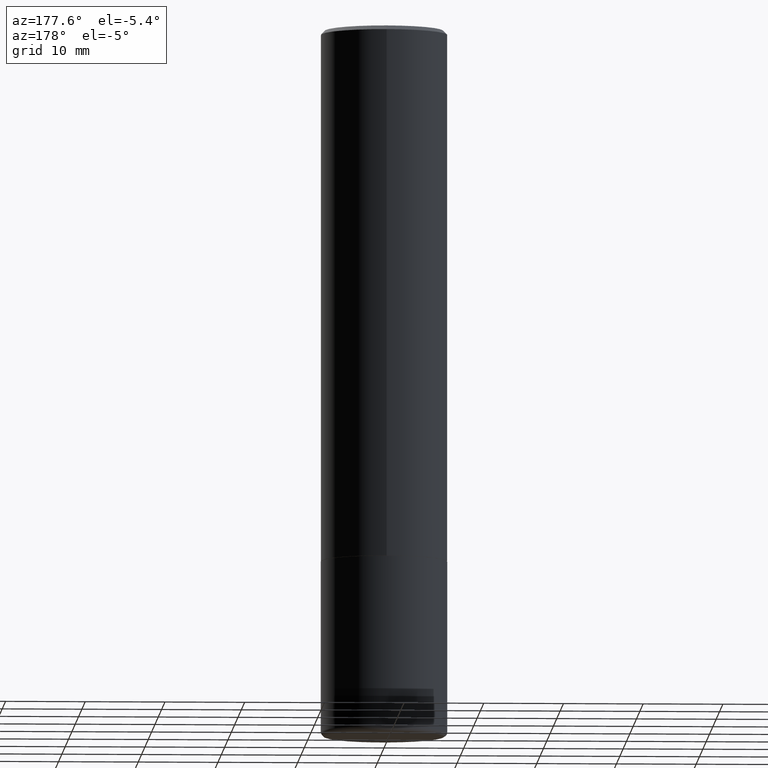
[diagram: clean part render]
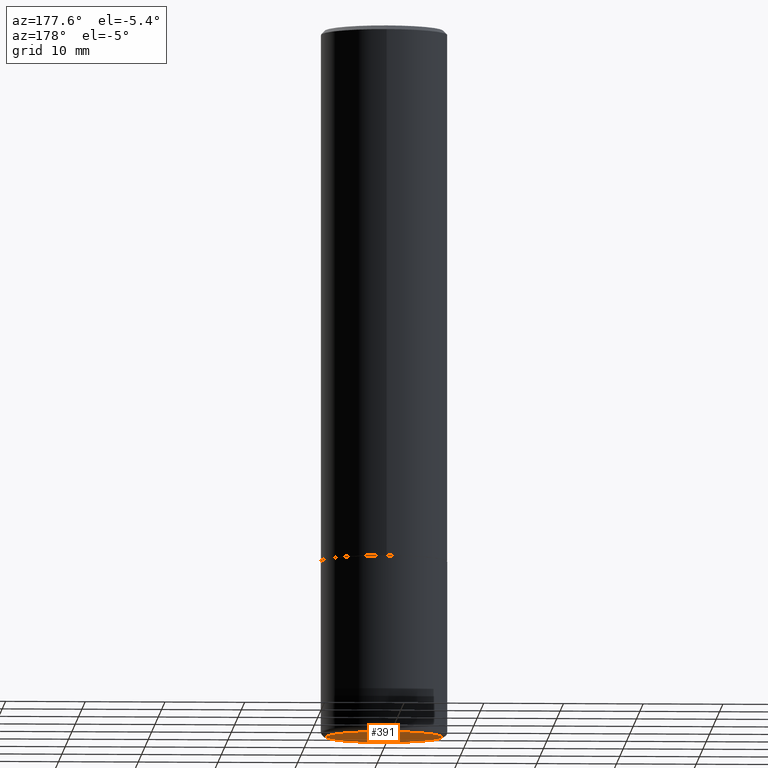
[diagram: same view with one face highlighted and labeled with its STEP entity id]
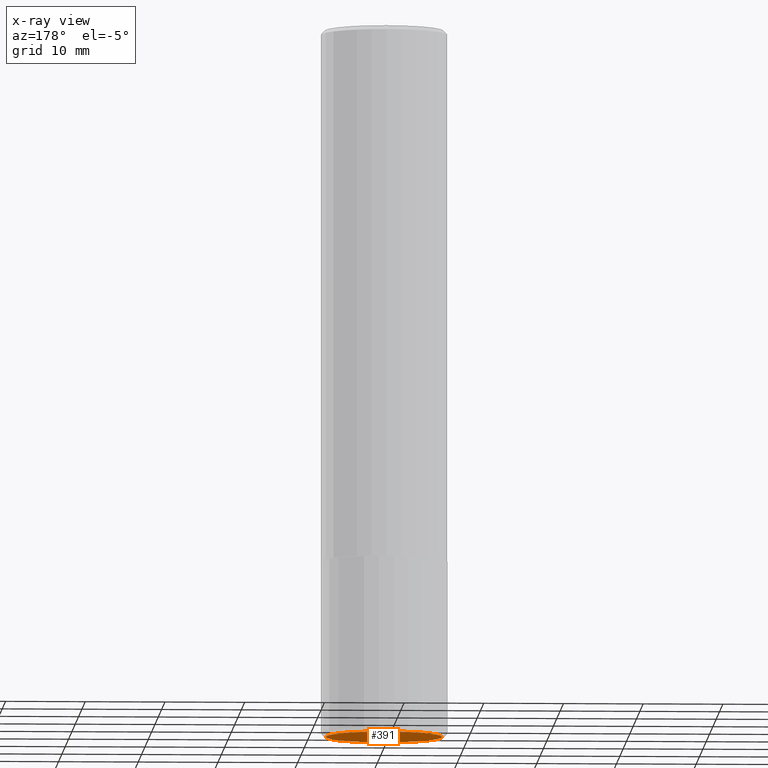
[diagram: x-ray of the same camera — body ghosted, the highlighted face saturated]
A machine part, auxiliary view. The second image highlights one B-rep face of the part: STEP entity #391.
The next image is the same camera in x-ray: the body ghosted, the highlighted face saturated — about 0% of this face is hidden behind the body in this view.
In plain terms, the highlighted planar face has unit normal (0, -0, -1).
Its self-contained STEP definition (entity closure, byte-faithful):
#8 = DIRECTION ( 'NONE',  ( -2.445468806185136597E-29, 3.491481338843145583E-15, 1.000000000000000000 ) ) ;
#12 = EDGE_LOOP ( 'NONE', ( #324, #301 ) ) ;
#34 = DIRECTION ( 'NONE',  ( -1.000000000000000000, 6.982962677686265922E-15, -4.876176775795935793E-29 ) ) ;
#71 = CARTESIAN_POINT ( 'NONE',  ( 8.559140821647976968E-29, -1.222018468595100619E-14, -3.499999999999999112 ) ) ;
#103 = VERTEX_POINT ( 'NONE', #218 ) ;
#105 = CARTESIAN_POINT ( 'NONE',  ( 8.559140821647976968E-29, -1.222018468595100619E-14, -3.499999999999999112 ) ) ;
#127 = PLANE ( 'NONE',  #148 ) ;
#148 = AXIS2_PLACEMENT_3D ( 'NONE', #259, #189, #34 ) ;
#180 = AXIS2_PLACEMENT_3D ( 'NONE', #105, #365, #362 ) ;
#189 = DIRECTION ( 'NONE',  ( 2.438088387897960049E-29, -3.491481338843145188E-15, -1.000000000000000000 ) ) ;
#191 = AXIS2_PLACEMENT_3D ( 'NONE', #71, #8, #334 ) ;
#218 = CARTESIAN_POINT ( 'NONE',  ( -0.2875000000000000333, -1.004491296193516694E-14, -3.499999999999999112 ) ) ;
#226 = EDGE_CURVE ( 'NONE', #103, #345, #262, .T. ) ;
#257 = EDGE_CURVE ( 'NONE', #345, #103, #379, .T. ) ;
#259 = CARTESIAN_POINT ( 'NONE',  ( 1.320382771090319883E-28, -5.568728701377147127E-15, -3.499999999999999112 ) ) ;
#262 = CIRCLE ( 'NONE', #180, 0.2875000000000000333 ) ;
#301 = ORIENTED_EDGE ( 'NONE', *, *, #226, .F. ) ;
#324 = ORIENTED_EDGE ( 'NONE', *, *, #257, .F. ) ;
#334 = DIRECTION ( 'NONE',  ( 1.000000000000000000, -6.982962677686265922E-15, 0.000000000000000000 ) ) ;
#341 = CARTESIAN_POINT ( 'NONE',  ( 0.2875000000000000333, -1.422778645578580787E-14, -3.499999999999999112 ) ) ;
#345 = VERTEX_POINT ( 'NONE', #341 ) ;
#354 = FACE_OUTER_BOUND ( 'NONE', #12, .T. ) ;
#362 = DIRECTION ( 'NONE',  ( 1.000000000000000000, -6.982962677686265922E-15, 0.000000000000000000 ) ) ;
#365 = DIRECTION ( 'NONE',  ( -2.445468806185136597E-29, 3.491481338843145583E-15, 1.000000000000000000 ) ) ;
#379 = CIRCLE ( 'NONE', #191, 0.2875000000000000333 ) ;
#391 = ADVANCED_FACE ( 'NONE', ( #354 ), #127, .T. ) ;